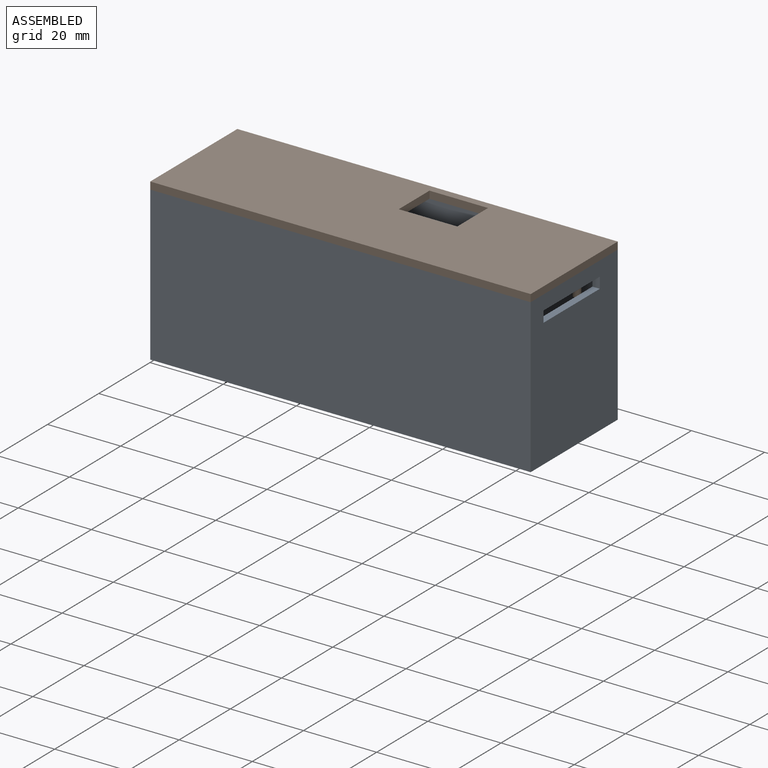
[diagram: assembled view]
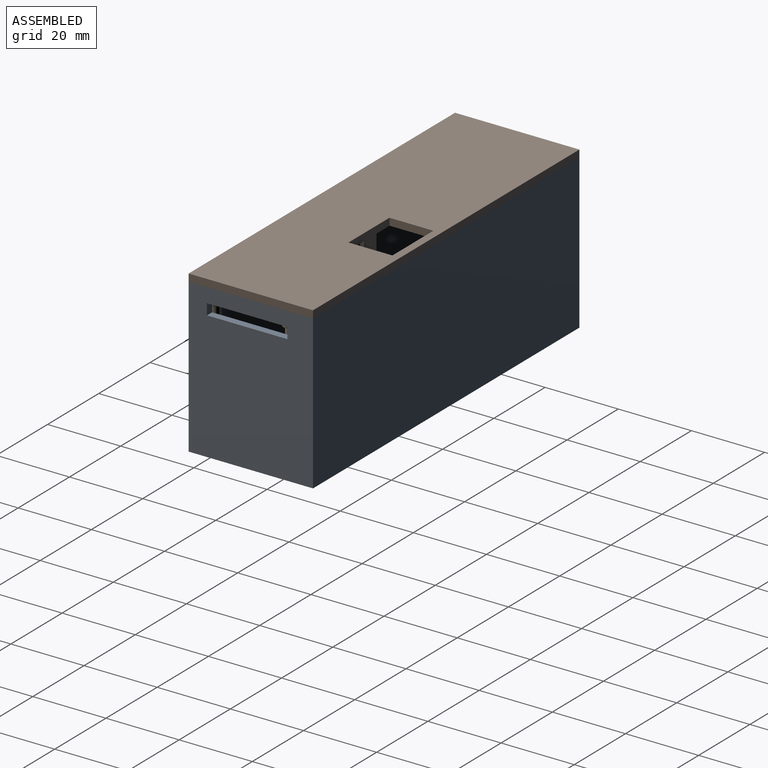
[diagram: assembled view, second angle]
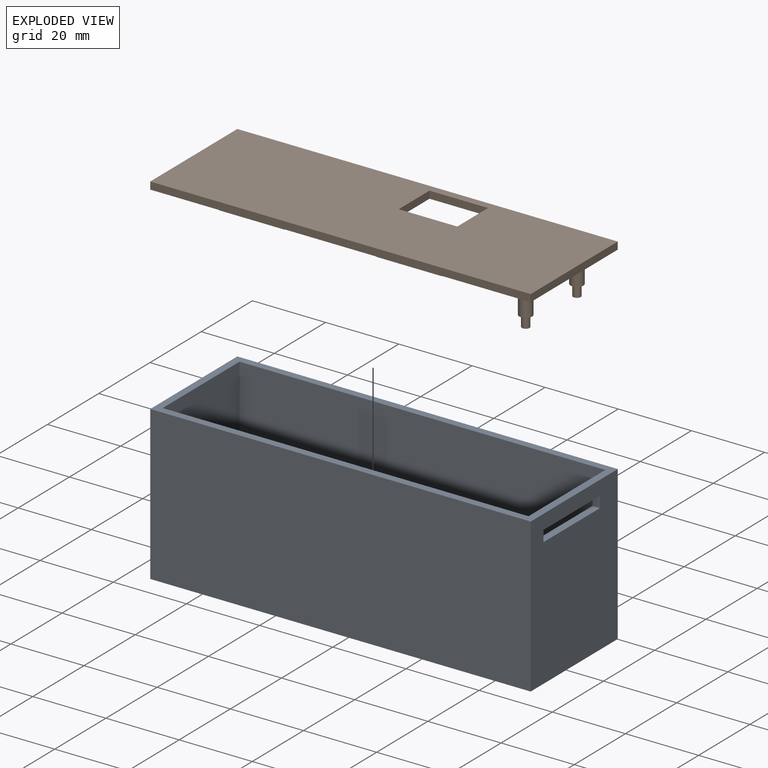
[diagram: exploded view]
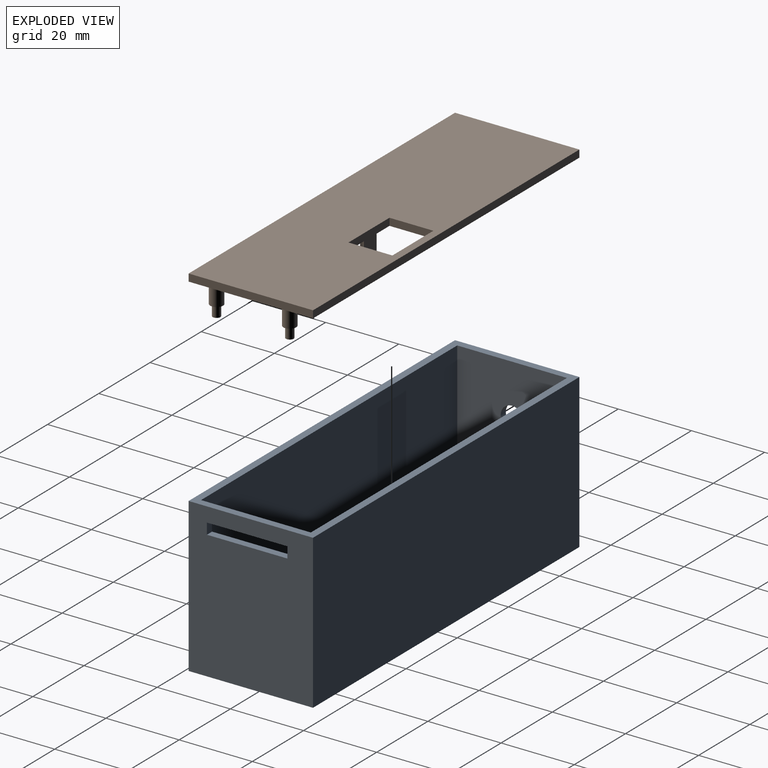
[diagram: exploded view, second angle]
FCSTD DOCUMENT  (FreeCAD 1.0R39319 (Git))
Label: JHR_Case_Assembly
License: All rights reserved
LicenseURL: https://en.wikipedia.org/wiki/All_rights_reserved
objects: App::Link×2
EXTERNAL_REF file=JHR_CASE_V2.0.FCStd obj=Body
EXTERNAL_REF file=JHR_Lid_V2.0.FCStd obj=Body

FEATURE [App::Link] Link  label="Body"
  LinkedObject = -> <external JHR_CASE_V2.0.FCStd>#Body
FEATURE [App::Link] Link001  label="Body001"
  LinkPlacement = pos=(0,-8.67855e-06,42) rot=(1,0,0;3.14159rad)
  LinkedObject = -> <external JHR_Lid_V2.0.FCStd>#Body
  Placement = pos=(0,-8.67855e-06,42) rot=(1,0,0;3.14159rad)

RESOLVED EXTERNAL PARTS (link-assembly join: the EXTERNAL_REF files above that resolve inside this repo's crawl, each included once):
---- part JHR_CASE_V2.0.FCStd = doc fcstd_e19cc7c1e444 ----
FCSTD DOCUMENT  (FreeCAD 1.0R39319 (Git))
Label: JHR_CASE_V2.0
License: All rights reserved
LicenseURL: https://en.wikipedia.org/wiki/All_rights_reserved
objects: Sketcher::SketchObject×5, PartDesign::Pad×3, PartDesign::Pocket×2, PartDesign::Thickness×1, PartDesign::Hole×1, PartDesign::Body×1
note: 32 computed .brp shape members not serialized (recipe doc carries the construction recipe); baked Part::Feature solids carry a one-line shape summary decoded from their .brp

FEATURE [Sketcher::SketchObject] Sketch
  ArcFitTolerance = 1e-06
  AttachmentSupport = -> [XY_Plane]
  FullyConstrained = true
  MakeInternals = false
  MapMode = 5
  sketch-geometry (5):
    g0: LineSegment StartX=-50 StartY=-15 StartZ=0 EndX=50 EndY=-15 EndZ=0
    g1: LineSegment StartX=50 StartY=-15 StartZ=0 EndX=50 EndY=15 EndZ=0
    g2: LineSegment StartX=50 StartY=15 StartZ=0 EndX=-50 EndY=15 EndZ=0
    g3: LineSegment StartX=-50 StartY=15 StartZ=0 EndX=-50 EndY=-15 EndZ=0
    g4: GeomPoint [constr] X=0 Y=0 Z=0
  constraints (13):
    c: Coincident(g0,g1)
    c: Coincident(g1,g2)
    c: Coincident(g2,g3)
    c: Coincident(g3,g0)
    c: Horizontal(g0)
    c: Horizontal(g2)
    c: Vertical(g1)
    c: Vertical(g3)
    c: Symmetric(g2,g0,g4)
    c: Distance(g1,g3) = 100
    c: Distance(g0,g2) = 30
    c: DistanceX(g-1,g4) = 0
    c: DistanceY(g-1,g4) = 0
FEATURE [PartDesign::Pad] Pad
  Direction = (0,0,1)
  Length = 40
  Length2 = 10
  Profile = -> Sketch
  ReferenceAxis = -> Sketch [N_Axis]
  Refine = true
  Suppressed = false
  Type = 0
FEATURE [PartDesign::Thickness] Thickness
  Base = -> Pad [Face6]
  BaseFeature = -> Pad
  Intersection = false
  Join = 1
  Mode = 0
  Refine = true
  SupportTransform = false
  Suppressed = false
  Value = 2
FEATURE [PartDesign::Pad] Pad001
  BaseFeature = -> Thickness
  Direction = (0,0,1)
  Length = 3
  Length2 = 10
  Profile = -> Thickness [Face5]
  Refine = true
  Suppressed = false
  Type = 0
FEATURE [Sketcher::SketchObject] Sketch001
  ArcFitTolerance = 1e-06
  AttachmentSupport = -> [Pad001]
  ExternalGeometry = -> [Pad001]
  FullyConstrained = true
  MakeInternals = false
  MapMode = 5
  Placement = pos=(0,0,3) rot=(0,0,1;0rad)
  sketch-geometry (8):
    g0: Circle CenterX=-47 CenterY=12 CenterZ=0 NormalX=0 NormalY=0 NormalZ=1 AngleXU=0 Radius=2.25
    g1: Circle CenterX=-3.1e-15 CenterY=12 CenterZ=0 NormalX=0 NormalY=0 NormalZ=1 AngleXU=0 Radius=2.25
    g2: Circle CenterX=7 CenterY=12 CenterZ=0 NormalX=0 NormalY=0 NormalZ=1 AngleXU=0 Radius=2.25
    g3: Circle CenterX=36 CenterY=12 CenterZ=0 NormalX=0 NormalY=0 NormalZ=1 AngleXU=0 Radius=2.25
    g4: Circle CenterX=-47 CenterY=-12 CenterZ=0 NormalX=0 NormalY=0 NormalZ=1 AngleXU=0 Radius=2.25
    g5: Circle CenterX=-2.5e-15 CenterY=-12 CenterZ=0 NormalX=0 NormalY=0 NormalZ=1 AngleXU=0 Radius=2.25
    g6: Circle CenterX=7 CenterY=-12 CenterZ=0 NormalX=0 NormalY=0 NormalZ=1 AngleXU=0 Radius=2.25
    g7: Circle CenterX=36 CenterY=-12 CenterZ=0 NormalX=0 NormalY=0 NormalZ=1 AngleXU=0 Radius=2.25
  constraints (24):
    c: Diameter(g0) = 4.5
    c: DistanceX(g-3,g0) = 3
    c: DistanceY(g0,g-3) = 3
    c: Equal(g0,g1)
    c: Equal(g1,g2)
    c: Equal(g2,g3)
    c: DistanceY(g1,g-3) = 3
    c: DistanceY(g2,g-3) = 3
    c: DistanceY(g3,g-3) = 3
    c: DistanceX(g0,g1) = 47
    c: DistanceX(g1,g2) = 7
    c: DistanceX(g2,g3) = 29
    c: Diameter(g4) = 4.5
    c: Equal(g4,g5)
    c: Equal(g5,g6)
    c: Equal(g6,g7)
    c: DistanceX(g4,g5) = 47
    c: DistanceX(g5,g6) = 7
    c: DistanceX(g6,g7) = 29
    c: DistanceX(g-3,g4) = 3
    c: DistanceY(g4,g0) = 24
    c: DistanceY(g5,g1) = 24
    c: DistanceY(g6,g2) = 24
    c: DistanceY(g7,g3) = 24
FEATURE [PartDesign::Pad] Pad002
  BaseFeature = -> Pad001
  Direction = (0,0,1)
  Length = 1
  Length2 = 10
  Profile = -> Sketch001
  ReferenceAxis = -> Sketch001 [N_Axis]
  Refine = true
  Suppressed = false
  Type = 0
FEATURE [Sketcher::SketchObject] Sketch002
  ArcFitTolerance = 1e-06
  AttachmentSupport = -> [Pad002]
  ExternalGeometry = -> [Pad002]
  FullyConstrained = true
  MakeInternals = false
  MapMode = 5
  Placement = pos=(0,0,-2) rot=(1,0,0;3.14159rad)
  sketch-geometry (8):
    g0: Circle CenterX=-47 CenterY=12 CenterZ=0 NormalX=0 NormalY=0 NormalZ=1 AngleXU=0 Radius=2.25
    g1: Circle CenterX=0 CenterY=12 CenterZ=0 NormalX=0 NormalY=0 NormalZ=1 AngleXU=0 Radius=2.25
    g2: Circle CenterX=7 CenterY=12 CenterZ=0 NormalX=0 NormalY=0 NormalZ=1 AngleXU=0 Radius=2.25
    g3: Circle CenterX=36 CenterY=12 CenterZ=0 NormalX=0 NormalY=0 NormalZ=1 AngleXU=0 Radius=2.25
    g4: Circle CenterX=-47 CenterY=-12 CenterZ=0 NormalX=0 NormalY=0 NormalZ=1 AngleXU=0 Radius=2.25
    g5: Circle CenterX=0 CenterY=-12 CenterZ=0 NormalX=0 NormalY=0 NormalZ=1 AngleXU=0 Radius=2.25
    g6: Circle CenterX=7 CenterY=-12 CenterZ=0 NormalX=0 NormalY=0 NormalZ=1 AngleXU=0 Radius=2.25
    g7: Circle CenterX=36 CenterY=-12 CenterZ=0 NormalX=0 NormalY=0 NormalZ=1 AngleXU=0 Radius=2.25
  constraints (24):
    c: Diameter(g0) = 4.5
    c: Equal(g0,g1)
    c: Equal(g1,g2)
    c: Equal(g2,g3)
    c: DistanceX(g0,g1) = 47
    c: DistanceX(g1,g2) = 7
    c: DistanceX(g2,g3) = 29
    c: Diameter(g4) = 4.5
    c: Equal(g4,g5)
    c: Equal(g5,g6)
    c: Equal(g6,g7)
    c: DistanceX(g4,g5) = 47
    c: DistanceX(g5,g6) = 7
    c: DistanceX(g6,g7) = 29
    c: DistanceY(g4,g0) = 24
    c: DistanceY(g5,g1) = 24
    c: DistanceY(g6,g2) = 24
    c: DistanceY(g7,g3) = 24
    c: DistanceX(g-3,g0) = 5
    c: DistanceY(g0,g-3) = 5
    c: DistanceX(g-3,g4) = 5
    c: DistanceY(g1,g-3) = 5
    c: DistanceY(g2,g-3) = 5
    c: DistanceY(g3,g-3) = 5
FEATURE [PartDesign::Hole] Hole
  BaseFeature = -> Pad002
  CustomThreadClearance = 0
  Depth = 25
  DepthType = 0
  Diameter = 3.4
  DrillForDepth = false
  DrillPoint = 0
  DrillPointAngle = 118
  HoleCutCountersinkAngle = 90
  HoleCutCustomValues = false
  HoleCutDepth = 2
  HoleCutDiameter = 6.1
  HoleCutType = 1
  ModelThread = false
  Profile = -> Sketch002
  Refine = true
  Suppressed = false
  Tapered = false
  TaperedAngle = 90
  ThreadClass = 0
  ThreadDepth = 25
  ThreadDepthType = 0
  ThreadDirection = 0
  ThreadFit = 0
  ThreadSize = 9
  ThreadType = 1
  Threaded = false
  UseCustomThreadClearance = false
FEATURE [Sketcher::SketchObject] Sketch003
  ArcFitTolerance = 1e-06
  AttachmentSupport = -> [Hole]
  ExternalGeometry = -> [Hole]
  FullyConstrained = true
  MakeInternals = false
  MapMode = 5
  Placement = pos=(52,0,0) rot=(0.57735,0.57735,0.57735;2.0944rad)
  sketch-geometry (4):
    g0: LineSegment StartX=-12 StartY=36 StartZ=0 EndX=-12 EndY=33 EndZ=0
    g1: LineSegment StartX=-12 StartY=33 StartZ=0 EndX=10 EndY=33 EndZ=0
    g2: LineSegment StartX=10 StartY=33 StartZ=0 EndX=10 EndY=36 EndZ=0
    g3: LineSegment StartX=10 StartY=36 StartZ=0 EndX=-12 EndY=36 EndZ=0
  constraints (12):
    c: Coincident(g0,g1)
    c: Coincident(g1,g2)
    c: Coincident(g2,g3)
    c: Coincident(g3,g0)
    c: Vertical(g0)
    c: Vertical(g2)
    c: Horizontal(g1)
    c: Horizontal(g3)
    c: Distance(g1,g3) = 3
    c: DistanceX(g-3,g0) = 5
    c: DistanceX(g2,g-4) = 7
    c: DistanceY(g0,g-3) = 4
FEATURE [PartDesign::Pocket] Pocket
  BaseFeature = -> Hole
  Direction = (-1,0,0)
  Length = 5
  Length2 = 5
  Profile = -> Sketch003
  ReferenceAxis = -> Sketch003 [N_Axis]
  Refine = true
  Suppressed = false
  Type = 2
FEATURE [Sketcher::SketchObject] Sketch004
  ArcFitTolerance = 1e-06
  AttachmentSupport = -> [Pocket]
  ExternalGeometry = -> [Pocket]
  FullyConstrained = true
  MakeInternals = false
  MapMode = 5
  Placement = pos=(-52,0,0) rot=(0.57735,-0.57735,-0.57735;2.0944rad)
  sketch-geometry (5):
    g0: LineSegment StartX=-5 StartY=10 StartZ=0 EndX=-5 EndY=4 EndZ=0
    g1: LineSegment StartX=-5 StartY=4 StartZ=0 EndX=6 EndY=4 EndZ=0
    g2: LineSegment StartX=6 StartY=4 StartZ=0 EndX=6 EndY=10 EndZ=0
    g3: LineSegment StartX=6 StartY=10 StartZ=0 EndX=-5 EndY=10 EndZ=0
    g4: Circle CenterX=0 CenterY=26 CenterZ=0 NormalX=0 NormalY=0 NormalZ=1 AngleXU=0 Radius=3.1
  constraints (15):
    c: Coincident(g0,g1)
    c: Coincident(g1,g2)
    c: Coincident(g2,g3)
    c: Coincident(g3,g0)
    c: Vertical(g0)
    c: Vertical(g2)
    c: Horizontal(g1)
    c: Horizontal(g3)
    c: Distance(g0,g2) = 11
    c: Distance(g1,g3) = 6
    c: DistanceY(g-3,g0) = 6
    c: DistanceX(g0,g-1) = 5
    c: Diameter(g4) = 6.2
    c: DistanceX(g4,g-1) = 0
    c: DistanceY(g-5,g4) = 23
FEATURE [PartDesign::Pocket] Pocket001
  BaseFeature = -> Pocket
  Direction = (1,0,0)
  Length = 5
  Length2 = 5
  Profile = -> Sketch004
  ReferenceAxis = -> Sketch004 [N_Axis]
  Refine = true
  Suppressed = false
  Type = 2
FEATURE [PartDesign::Body] Body
  AllowCompound = false
  Group = -> [Sketch,Pad,Thickness,Pad001,Sketch001,Pad002,Sketch002,Hole,Sketch003,Pocket,Sketch004,Pocket001]
  Origin = -> Origin
  Tip = -> Pocket001
---- part JHR_Lid_V2.0.FCStd = doc fcstd_000ca2ca1932 ----
FCSTD DOCUMENT  (FreeCAD 1.0R39319 (Git))
Label: JHR_Lid_V2.0
License: All rights reserved
LicenseURL: https://en.wikipedia.org/wiki/All_rights_reserved
objects: PartDesign::Pad×7, Sketcher::SketchObject×5, PartDesign::SubShapeBinder×1, PartDesign::Pocket×1, PartDesign::Body×1
note: 36 computed .brp shape members not serialized (recipe doc carries the construction recipe); baked Part::Feature solids carry a one-line shape summary decoded from their .brp
EXTERNAL_REF file=JHR_CASE_V2.0.FCStd obj=Body

FEATURE [PartDesign::SubShapeBinder] Binder
  BindCopyOnChange = 0
  BindMode = 0
  ClaimChildren = false
  Context = -> Body [Binder.]
  Fuse = false
  MakeFace = true
  OffsetFill = false
  OffsetIntersection = false
  OffsetJoinType = 0
  OffsetOpenResult = false
  PartialLoad = false
  Refine = true
  Relative = true
  Support = -> [<external JHR_CASE_V2.0.FCStd>#Body[Pad002.Face4]]
  _Version = 2
FEATURE [Sketcher::SketchObject] Sketch
  ArcFitTolerance = 1e-06
  AttachmentSupport = -> [XY_Plane]
  ExternalGeometry = -> [Binder]
  FullyConstrained = true
  MakeInternals = false
  MapMode = 5
  sketch-geometry (4):
    g0: LineSegment StartX=-52 StartY=17 StartZ=0 EndX=-52 EndY=-17 EndZ=0
    g1: LineSegment StartX=-52 StartY=-17 StartZ=0 EndX=52 EndY=-17 EndZ=0
    g2: LineSegment StartX=52 StartY=-17 StartZ=0 EndX=52 EndY=17 EndZ=0
    g3: LineSegment StartX=52 StartY=17 StartZ=0 EndX=-52 EndY=17 EndZ=0
  constraints (12):
    c: Coincident(g0,g1)
    c: Coincident(g1,g2)
    c: Coincident(g2,g3)
    c: Coincident(g3,g0)
    c: Vertical(g0)
    c: Vertical(g2)
    c: Horizontal(g1)
    c: Horizontal(g3)
    c: Distance(g0,g2) = 104
    c: Distance(g1,g3) = 34
    c: DistanceX(g-4,g0) = 0
    c: DistanceY(g0,g-4) = 0
FEATURE [PartDesign::Pad] Pad
  Direction = (0,0,1)
  Length = 2
  Length2 = 10
  Profile = -> Sketch
  ReferenceAxis = -> Sketch [N_Axis]
  Refine = true
  Suppressed = false
  Type = 0
FEATURE [Sketcher::SketchObject] Sketch001
  ArcFitTolerance = 1e-06
  AttachmentSupport = -> [XY_Plane]
  ExternalGeometry = -> [Binder]
  FullyConstrained = true
  MakeInternals = false
  MapMode = 5
  sketch-geometry (16):
    g0: LineSegment StartX=-35 StartY=14.5 StartZ=0 EndX=-35 EndY=13 EndZ=0
    g1: LineSegment StartX=-35 StartY=13 StartZ=0 EndX=-17 EndY=13 EndZ=0
    g2: LineSegment StartX=-17 StartY=13 StartZ=0 EndX=-17 EndY=14.5 EndZ=0
    g3: LineSegment StartX=-17 StartY=14.5 StartZ=0 EndX=-35 EndY=14.5 EndZ=0
    g4: LineSegment StartX=-35 StartY=-13 StartZ=0 EndX=-35 EndY=-14.5 EndZ=0
    g5: LineSegment StartX=-35 StartY=-14.5 StartZ=0 EndX=-17 EndY=-14.5 EndZ=0
    g6: LineSegment StartX=-17 StartY=-14.5 StartZ=0 EndX=-17 EndY=-13 EndZ=0
    g7: LineSegment StartX=-17 StartY=-13 StartZ=0 EndX=-35 EndY=-13 EndZ=0
    g8: LineSegment StartX=-49.5 StartY=7.5 StartZ=0 EndX=-49.5 EndY=-7.5 EndZ=0
    g9: LineSegment StartX=-49.5 StartY=-7.5 StartZ=0 EndX=-48 EndY=-7.5 EndZ=0
    g10: LineSegment StartX=-48 StartY=-7.5 StartZ=0 EndX=-48 EndY=7.5 EndZ=0
    g11: LineSegment StartX=-48 StartY=7.5 StartZ=0 EndX=-49.5 EndY=7.5 EndZ=0
    g12: LineSegment StartX=8.07 StartY=14.5 StartZ=0 EndX=8.07 EndY=13 EndZ=0
    g13: LineSegment StartX=8.07 StartY=13 StartZ=0 EndX=26.07 EndY=13 EndZ=0
    g14: LineSegment StartX=26.07 StartY=13 StartZ=0 EndX=26.07 EndY=14.5 EndZ=0
    g15: LineSegment StartX=26.07 StartY=14.5 StartZ=0 EndX=8.07 EndY=14.5 EndZ=0
  constraints (48):
    c: Coincident(g0,g1)
    c: Coincident(g1,g2)
    c: Coincident(g2,g3)
    c: Coincident(g3,g0)
    c: Vertical(g0)
    c: Vertical(g2)
    c: Horizontal(g1)
    c: Horizontal(g3)
    c: Coincident(g4,g5)
    c: Coincident(g5,g6)
    c: Coincident(g6,g7)
    c: Coincident(g7,g4)
    c: Vertical(g4)
    c: Vertical(g6)
    c: Horizontal(g5)
    c: Horizontal(g7)
    c: DistanceY(g-6,g4) = 0.5
    c: DistanceY(g4,g4) = 1.5
    c: DistanceX(g7,g7) = 18
    c: DistanceX(g-6,g4) = 15
    c: DistanceX(g3,g3) = 18
    c: DistanceX(g-5,g0) = 15
    c: DistanceY(g0,g0) = 1.5
    c: DistanceY(g0,g-5) = 0.5
    c: Coincident(g8,g9)
    c: Coincident(g9,g10)
    c: Coincident(g10,g11)
    c: Coincident(g11,g8)
    c: Vertical(g8)
    c: Vertical(g10)
    c: Horizontal(g9)
    c: Horizontal(g11)
    c: Distance(g8,g10) = 1.5
    c: Distance(g9,g11) = 15
    c: DistanceY(g-1,g10) = 7.5
    c: DistanceX(g-5,g8) = 0.5
    c: Coincident(g12,g13)
    c: Coincident(g13,g14)
    c: Coincident(g14,g15)
    c: Coincident(g15,g12)
    c: Vertical(g12)
    c: Vertical(g14)
    c: Horizontal(g13)
    c: Horizontal(g15)
    c: Distance(g12,g14) = 18
    c: Distance(g13,g15) = 1.5
    c: DistanceX(g14,g-7) = 23.93
    c: DistanceY(g12,g-7) = 0.5
FEATURE [PartDesign::Pad] Pad001
  BaseFeature = -> Pad
  Direction = (0,0,1)
  Length = 1
  Length2 = 10
  Profile = -> Sketch001
  ReferenceAxis = -> Sketch001 [N_Axis]
  Refine = true
  Suppressed = false
  Type = 0
FEATURE [PartDesign::Pad] Pad002
  BaseFeature = -> Pad001
  Direction = (0,0,1)
  Length = 3.5
  Length2 = 10
  Profile = -> Sketch001
  ReferenceAxis = -> Sketch001 [N_Axis]
  Refine = true
  Suppressed = false
  Type = 0
FEATURE [Sketcher::SketchObject] Sketch002
  ArcFitTolerance = 1e-06
  AttachmentSupport = -> [Pad002]
  ExternalGeometry = -> [Binder]
  FullyConstrained = true
  MakeInternals = false
  MapMode = 5
  Placement = pos=(0,0,2) rot=(0,0,1;0rad)
  sketch-geometry (4):
    g0: Circle CenterX=47.5 CenterY=-7.5 CenterZ=0 NormalX=0 NormalY=0 NormalZ=1 AngleXU=0 Radius=1.05
    g1: Circle CenterX=47.5 CenterY=-7.5 CenterZ=0 NormalX=0 NormalY=0 NormalZ=1 AngleXU=0 Radius=1.75
    g2: Circle CenterX=47.5 CenterY=12.5 CenterZ=0 NormalX=0 NormalY=0 NormalZ=1 AngleXU=0 Radius=1.05
    g3: Circle CenterX=47.5 CenterY=12.5 CenterZ=0 NormalX=0 NormalY=0 NormalZ=1 AngleXU=0 Radius=1.75
  constraints (12):
    c: Diameter(g0) = 2.1
    c: Diameter(g1) = 3.5
    c: DistanceX(g0,g-3) = 2.5
    c: DistanceX(g1,g0) = 0
    c: DistanceY(g0,g1) = 0
    c: Diameter(g2) = 2.1
    c: Diameter(g3) = 3.5
    c: DistanceX(g3,g2) = 0
    c: DistanceY(g2,g3) = 0
    c: DistanceX(g2,g-3) = 2.5
    c: DistanceY(g0,g2) = 20
    c: DistanceY(g2,g-4) = 2.5
FEATURE [PartDesign::Pad] Pad003
  BaseFeature = -> Pad002
  Direction = (0,0,1)
  Length = 9
  Length2 = 10
  Profile = -> Sketch002 [Edge3,Edge1]
  ReferenceAxis = -> Sketch002 [N_Axis]
  Refine = true
  Suppressed = false
  Type = 0
FEATURE [PartDesign::Pad] Pad004
  BaseFeature = -> Pad003
  Direction = (0,0,1)
  Length = 6
  Length2 = 10
  Profile = -> Sketch002 [Edge2,Edge4]
  ReferenceAxis = -> Sketch002 [N_Axis]
  Refine = true
  Suppressed = false
  Type = 0
FEATURE [Sketcher::SketchObject] Sketch003
  ArcFitTolerance = 1e-06
  AttachmentSupport = -> [Pad004]
  ExternalGeometry = -> [Binder]
  FullyConstrained = true
  MakeInternals = false
  MapMode = 5
  Placement = pos=(0,0,2) rot=(0,0,1;0rad)
  sketch-geometry (8):
    g0: LineSegment StartX=2 StartY=-2.9 StartZ=0 EndX=2 EndY=-14.9 EndZ=0
    g1: LineSegment StartX=2 StartY=-14.9 StartZ=0 EndX=18 EndY=-14.9 EndZ=0
    g2: LineSegment StartX=18 StartY=-14.9 StartZ=0 EndX=18 EndY=-2.9 EndZ=0
    g3: LineSegment StartX=18 StartY=-2.9 StartZ=0 EndX=2 EndY=-2.9 EndZ=0
    g4: LineSegment StartX=7 StartY=-2.89 StartZ=0 EndX=12 EndY=-2.89 EndZ=0
    g5: LineSegment StartX=12 StartY=-2.89 StartZ=0 EndX=12 EndY=-1.89 EndZ=0
    g6: LineSegment StartX=12 StartY=-1.89 StartZ=0 EndX=7 EndY=-1.89 EndZ=0
    g7: LineSegment StartX=7 StartY=-1.89 StartZ=0 EndX=7 EndY=-2.89 EndZ=0
  constraints (24):
    c: Coincident(g0,g1)
    c: Coincident(g1,g2)
    c: Coincident(g2,g3)
    c: Coincident(g3,g0)
    c: Vertical(g0)
    c: Vertical(g2)
    c: Horizontal(g1)
    c: Horizontal(g3)
    c: DistanceX(g3,g3) = 16
    c: DistanceY(g0,g0) = 12
    c: DistanceX(g1,g-3) = 32
    c: DistanceY(g-3,g1) = 0.1
    c: Coincident(g4,g5)
    c: Coincident(g5,g6)
    c: Coincident(g6,g7)
    c: Coincident(g7,g4)
    c: Horizontal(g4)
    c: Horizontal(g6)
    c: Vertical(g5)
    c: Vertical(g7)
    c: Distance(g5,g7) = 5
    c: Distance(g4,g6) = 1
    c: DistanceY(g0,g4) = 0.01
    c: DistanceX(g0,g4) = 5
FEATURE [PartDesign::Pocket] Pocket
  BaseFeature = -> Pad004
  Direction = (0,0,-1)
  Length = 5
  Length2 = 5
  Profile = -> Sketch003 [Edge3,Edge4,Edge1,Edge2]
  ReferenceAxis = -> Sketch003 [N_Axis]
  Refine = true
  Suppressed = false
  Type = 2
FEATURE [PartDesign::Pad] Pad005
  BaseFeature = -> Pocket
  Direction = (0,0,1)
  Length = 8.5
  Length2 = 10
  Profile = -> Sketch003 [Edge7,Edge5,Edge6,Edge8]
  ReferenceAxis = -> Sketch003 [N_Axis]
  Refine = true
  Suppressed = false
  Type = 0
FEATURE [Sketcher::SketchObject] Sketch004
  ArcFitTolerance = 1e-06
  AttachmentSupport = -> [Pad005]
  ExternalGeometry = -> [Pad005]
  FullyConstrained = true
  MakeInternals = false
  MapMode = 5
  Placement = pos=(0,-2.89,0) rot=(1,0,0;1.5708rad)
  sketch-geometry (4):
    g0: LineSegment StartX=7 StartY=10.5 StartZ=0 EndX=7 EndY=9.5 EndZ=0
    g1: LineSegment StartX=7 StartY=9.5 StartZ=0 EndX=12 EndY=9.5 EndZ=0
    g2: LineSegment StartX=12 StartY=9.5 StartZ=0 EndX=12 EndY=10.5 EndZ=0
    g3: LineSegment StartX=12 StartY=10.5 StartZ=0 EndX=7 EndY=10.5 EndZ=0
  constraints (12):
    c: Coincident(g0,g1)
    c: Coincident(g1,g2)
    c: Coincident(g2,g3)
    c: Coincident(g3,g0)
    c: Vertical(g0)
    c: Vertical(g2)
    c: Horizontal(g1)
    c: Horizontal(g3)
    c: DistanceY(g0,g-3) = 0
    c: DistanceX(g-3,g0) = 0
    c: DistanceX(g2,g-4) = 0
    c: DistanceY(g0,g0) = 1
FEATURE [PartDesign::Pad] Pad006
  BaseFeature = -> Pad005
  Direction = (0,-1,2e-16)
  Length = 2
  Length2 = 10
  Profile = -> Sketch004
  ReferenceAxis = -> Sketch004 [N_Axis]
  Refine = true
  Suppressed = false
  Type = 0
FEATURE [PartDesign::Body] Body
  AllowCompound = false
  Group = -> [Binder,Sketch,Pad,Sketch001,Pad001,Pad002,Sketch002,Pad003,Pad004,Sketch003,Pocket,Pad005,Sketch004,Pad006]
  Origin = -> Origin
  Tip = -> Pad006
